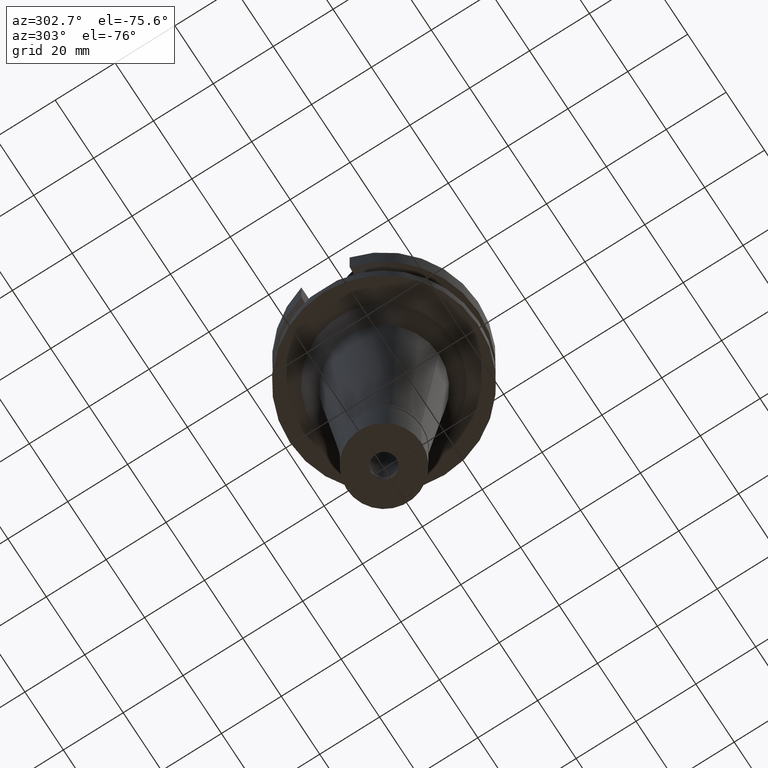
[diagram: clean part render]
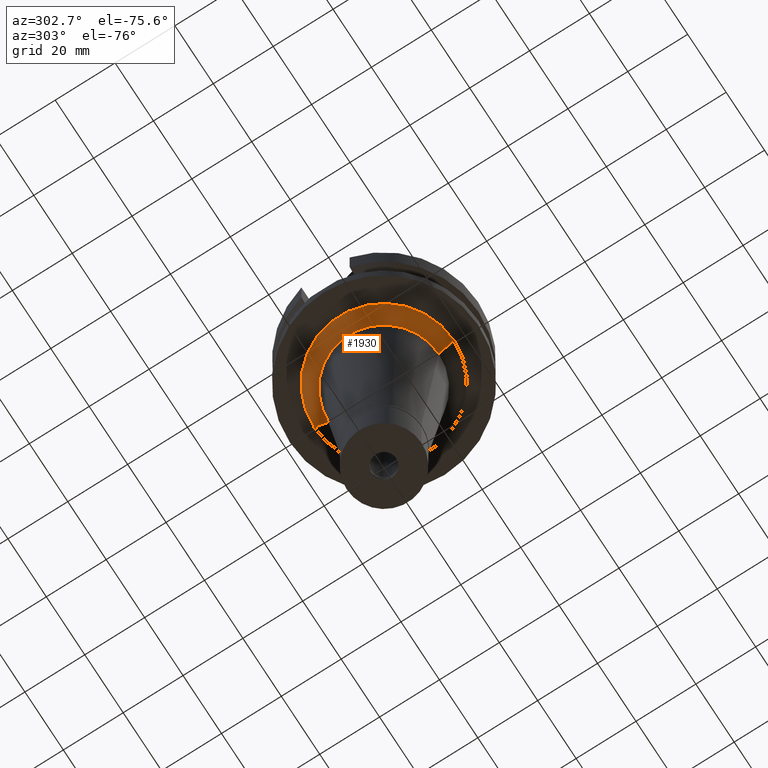
[diagram: same view with one face highlighted and labeled with its STEP entity id]
A machine part, auxiliary view. The second image highlights one B-rep face of the part: STEP entity #1930.
In plain terms, the highlighted conical surface has half-angle 45 deg.
Its self-contained STEP definition (entity closure, byte-faithful):
#29 = DIRECTION ( 'NONE',  ( 0.0000000000000000000, -1.000000000000000000, 0.0000000000000000000 ) ) ;
#45 = EDGE_CURVE ( 'NONE', #2367, #1756, #2973, .T. ) ;
#312 = DIRECTION ( 'NONE',  ( 0.0000000000000000000, -1.000000000000000000, 0.0000000000000000000 ) ) ;
#415 = ORIENTED_EDGE ( 'NONE', *, *, #795, .T. ) ;
#531 = VECTOR ( 'NONE', #2703, 1000.000000000000000 ) ;
#735 = CARTESIAN_POINT ( 'NONE',  ( 0.0000000000000000000, -18.33549385717999769, -32.00000000000000000 ) ) ;
#795 = EDGE_CURVE ( 'NONE', #1633, #1010, #1282, .T. ) ;
#811 = CARTESIAN_POINT ( 'NONE',  ( 0.0000000000000000000, 0.0000000000000000000, -29.50000000000000000 ) ) ;
#1010 = VERTEX_POINT ( 'NONE', #2319 ) ;
#1013 = LINE ( 'NONE', #2418, #531 ) ;
#1206 = ORIENTED_EDGE ( 'NONE', *, *, #45, .F. ) ;
#1227 = DIRECTION ( 'NONE',  ( 0.0000000000000000000, 0.0000000000000000000, -1.000000000000000000 ) ) ;
#1282 = CIRCLE ( 'NONE', #2910, 23.33549385717999769 ) ;
#1332 = VECTOR ( 'NONE', #2229, 1000.000000000000000 ) ;
#1389 = ORIENTED_EDGE ( 'NONE', *, *, #2060, .F. ) ;
#1449 = CARTESIAN_POINT ( 'NONE',  ( 0.0000000000000000000, 0.0000000000000000000, -27.00000000000000000 ) ) ;
#1471 = EDGE_LOOP ( 'NONE', ( #1206, #1389, #415, #1928 ) ) ;
#1515 = DIRECTION ( 'NONE',  ( 0.0000000000000000000, 1.000000000000000000, 0.0000000000000000000 ) ) ;
#1551 = LINE ( 'NONE', #2995, #1332 ) ;
#1633 = VERTEX_POINT ( 'NONE', #2821 ) ;
#1756 = VERTEX_POINT ( 'NONE', #2920 ) ;
#1776 = EDGE_CURVE ( 'NONE', #1010, #1756, #1013, .T. ) ;
#1785 = CONICAL_SURFACE ( 'NONE', #2093, 20.83549385718000124, 0.7853981633972997312 ) ;
#1928 = ORIENTED_EDGE ( 'NONE', *, *, #1776, .T. ) ;
#1930 = ADVANCED_FACE ( 'NONE', ( #2047 ), #1785, .T. ) ;
#2047 = FACE_OUTER_BOUND ( 'NONE', #1471, .T. ) ;
#2060 = EDGE_CURVE ( 'NONE', #1633, #2367, #1551, .T. ) ;
#2093 = AXIS2_PLACEMENT_3D ( 'NONE', #811, #2492, #1515 ) ;
#2229 = DIRECTION ( 'NONE',  ( 0.0000000000000000000, 0.7071067811865969777, -0.7071067811864980568 ) ) ;
#2319 = CARTESIAN_POINT ( 'NONE',  ( 0.0000000000000000000, 23.33549385717999769, -27.00000000000000000 ) ) ;
#2367 = VERTEX_POINT ( 'NONE', #735 ) ;
#2418 = CARTESIAN_POINT ( 'NONE',  ( 0.0000000000000000000, 23.33549385717999769, -27.00000000000000000 ) ) ;
#2473 = DIRECTION ( 'NONE',  ( 0.0000000000000000000, 0.0000000000000000000, -1.000000000000000000 ) ) ;
#2492 = DIRECTION ( 'NONE',  ( 0.0000000000000000000, 0.0000000000000000000, 1.000000000000000000 ) ) ;
#2703 = DIRECTION ( 'NONE',  ( 0.0000000000000000000, -0.7071067811865969777, -0.7071067811864980568 ) ) ;
#2821 = CARTESIAN_POINT ( 'NONE',  ( 0.0000000000000000000, -23.33549385717999769, -27.00000000000000000 ) ) ;
#2866 = AXIS2_PLACEMENT_3D ( 'NONE', #3129, #1227, #29 ) ;
#2910 = AXIS2_PLACEMENT_3D ( 'NONE', #1449, #2473, #312 ) ;
#2920 = CARTESIAN_POINT ( 'NONE',  ( 0.0000000000000000000, 18.33549385717999769, -32.00000000000000000 ) ) ;
#2973 = CIRCLE ( 'NONE', #2866, 18.33549385717999769 ) ;
#2995 = CARTESIAN_POINT ( 'NONE',  ( 0.0000000000000000000, -23.33549385717999769, -27.00000000000000000 ) ) ;
#3129 = CARTESIAN_POINT ( 'NONE',  ( 0.0000000000000000000, 0.0000000000000000000, -32.00000000000000000 ) ) ;